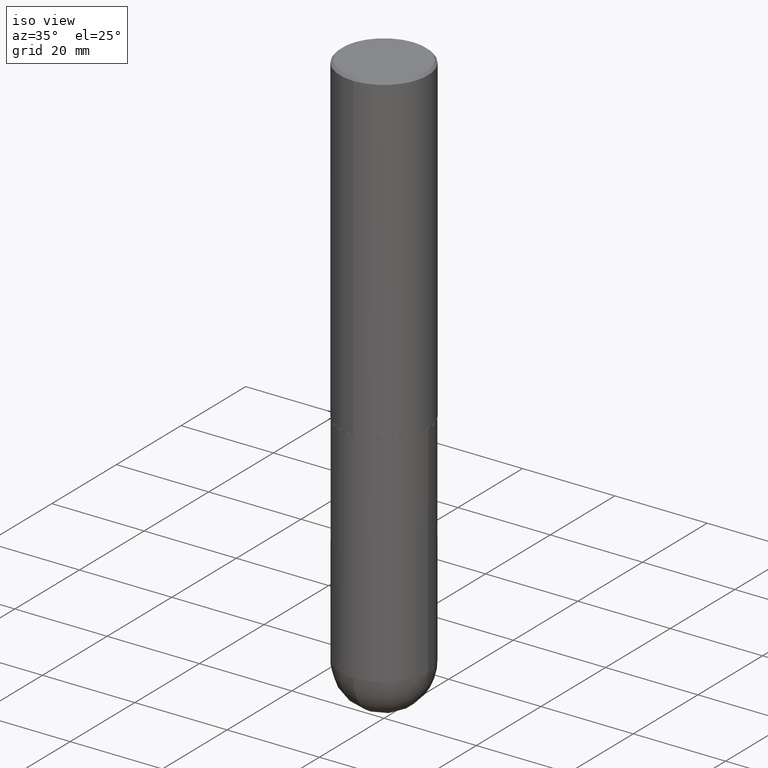
[diagram: clean part render]
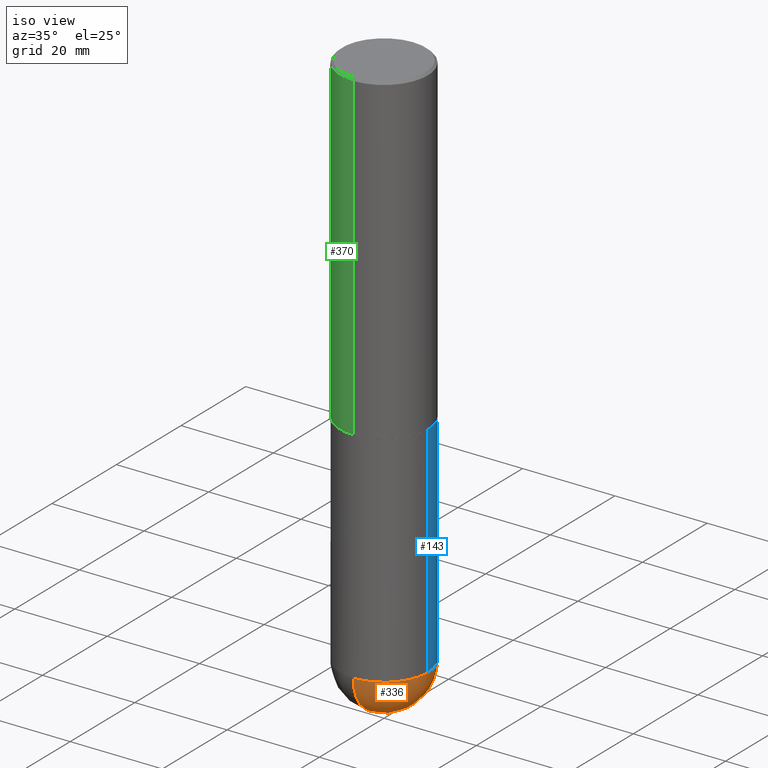
[diagram: same view with three faces highlighted in distinct colors, each labeled with its STEP entity id]
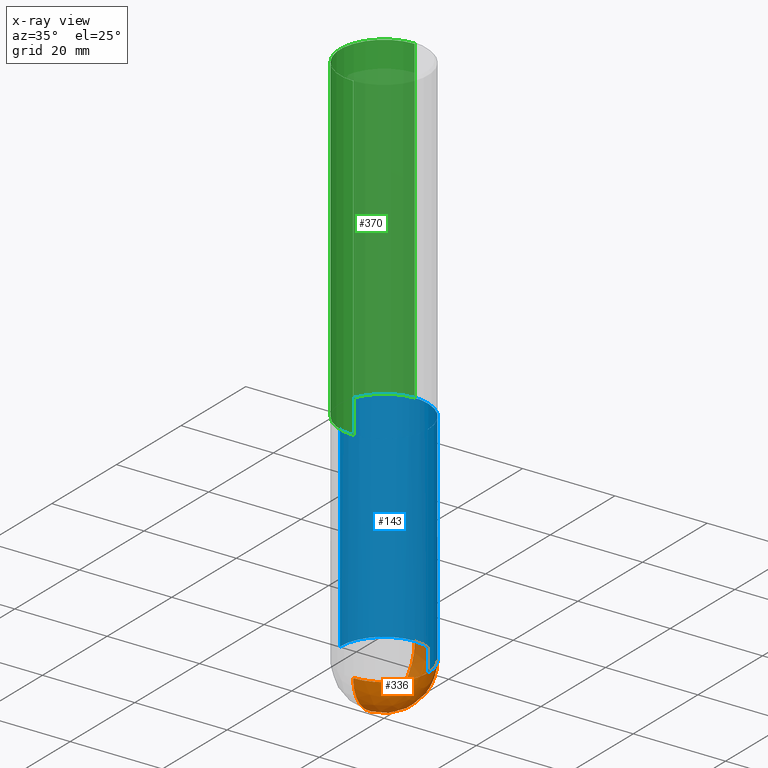
[diagram: x-ray of the same camera — body ghosted, the three highlighted faces saturated]
A machine part, iso view with three faces highlighted in distinct colors.
The next image is the same camera in x-ray (body ghosted, the three faces saturated) — at least one of them is partly hidden behind the body in this view.
Their STEP definitions:

[orange] entity #336 — the highlighted spherical surface has radius 9.525 mm.
#6 = CIRCLE ( 'NONE', #128, 0.3750000000000001110 ) ;
#12 = VERTEX_POINT ( 'NONE', #200 ) ;
#14 = CARTESIAN_POINT ( 'NONE',  ( 1.191225862093391378E-28, -1.790862693487176734E-14, -5.000000000000000000 ) ) ;
#45 = CARTESIAN_POINT ( 'NONE',  ( 1.097917345069237163E-28, -1.662228356028959886E-14, -4.625000000000000000 ) ) ;
#51 = CARTESIAN_POINT ( 'NONE',  ( 1.131029322860625676E-28, -1.614810119214955014E-14, -4.625000000000000888 ) ) ;
#56 = AXIS2_PLACEMENT_3D ( 'NONE', #258, #320, #377 ) ;
#60 = VERTEX_POINT ( 'NONE', #14 ) ;
#61 = CARTESIAN_POINT ( 'NONE',  ( -2.664535259100265651E-15, -0.3750000000000165978, -4.624999999999999112 ) ) ;
#66 = ORIENTED_EDGE ( 'NONE', *, *, #172, .F. ) ;
#67 = CARTESIAN_POINT ( 'NONE',  ( 1.131029322860625676E-28, -1.614810119214955014E-14, -4.625000000000000888 ) ) ;
#73 = CIRCLE ( 'NONE', #118, 0.3750000000000003886 ) ;
#74 = ORIENTED_EDGE ( 'NONE', *, *, #291, .F. ) ;
#82 = AXIS2_PLACEMENT_3D ( 'NONE', #51, #182, #183 ) ;
#92 = ORIENTED_EDGE ( 'NONE', *, *, #262, .T. ) ;
#98 = CARTESIAN_POINT ( 'NONE',  ( 1.097917345069237163E-28, -1.662228356028959886E-14, -4.625000000000000000 ) ) ;
#101 = DIRECTION ( 'NONE',  ( 1.000000000000000000, -6.982962677686265922E-15, 0.000000000000000000 ) ) ;
#118 = AXIS2_PLACEMENT_3D ( 'NONE', #45, #267, #177 ) ;
#123 = VERTEX_POINT ( 'NONE', #239 ) ;
#128 = AXIS2_PLACEMENT_3D ( 'NONE', #67, #323, #101 ) ;
#131 = SPHERICAL_SURFACE ( 'NONE', #56, 0.3750000000000003886 ) ;
#135 = FACE_OUTER_BOUND ( 'NONE', #188, .T. ) ;
#152 = ORIENTED_EDGE ( 'NONE', *, *, #255, .F. ) ;
#172 = EDGE_CURVE ( 'NONE', #60, #406, #73, .T. ) ;
#177 = DIRECTION ( 'NONE',  ( -7.105427357600999492E-15, -1.000000000000000000, 0.000000000000000000 ) ) ;
#182 = DIRECTION ( 'NONE',  ( -2.445468806185136597E-29, 3.491481338843145583E-15, 1.000000000000000000 ) ) ;
#183 = DIRECTION ( 'NONE',  ( 1.000000000000000000, -6.982962677686265922E-15, 0.000000000000000000 ) ) ;
#188 = EDGE_LOOP ( 'NONE', ( #66, #92, #74, #152 ) ) ;
#200 = CARTESIAN_POINT ( 'NONE',  ( 0.3750000000000001110, -1.549344844111645238E-14, -4.625000000000000888 ) ) ;
#239 = CARTESIAN_POINT ( 'NONE',  ( 2.618611004132463218E-15, 0.3749999999999838463, -4.625000000000001776 ) ) ;
#255 = EDGE_CURVE ( 'NONE', #406, #12, #325, .T. ) ;
#258 = CARTESIAN_POINT ( 'NONE',  ( 1.097917345069237163E-28, -1.662228356028959886E-14, -4.625000000000000000 ) ) ;
#262 = EDGE_CURVE ( 'NONE', #60, #123, #305, .T. ) ;
#267 = DIRECTION ( 'NONE',  ( -1.000000000000000000, 7.105427357601001070E-15, -4.926315508542082329E-29 ) ) ;
#286 = DIRECTION ( 'NONE',  ( 6.982962677686265922E-15, 1.000000000000000000, 0.000000000000000000 ) ) ;
#291 = EDGE_CURVE ( 'NONE', #12, #123, #6, .T. ) ;
#305 = CIRCLE ( 'NONE', #351, 0.3750000000000003886 ) ;
#320 = DIRECTION ( 'NONE',  ( -1.000000000000000000, 6.982962677686266711E-15, -4.883557194083113462E-29 ) ) ;
#323 = DIRECTION ( 'NONE',  ( -2.445468806185136597E-29, 3.491481338843145583E-15, 1.000000000000000000 ) ) ;
#325 = CIRCLE ( 'NONE', #82, 0.3750000000000001110 ) ;
#336 = ADVANCED_FACE ( 'NONE', ( #135 ), #131, .T. ) ;
#351 = AXIS2_PLACEMENT_3D ( 'NONE', #98, #409, #286 ) ;
#377 = DIRECTION ( 'NONE',  ( 6.982962677686266711E-15, 1.000000000000000000, -2.913971193241878005E-15 ) ) ;
#406 = VERTEX_POINT ( 'NONE', #61 ) ;
#409 = DIRECTION ( 'NONE',  ( 1.000000000000000000, -6.982962677686265922E-15, 4.883557194083112340E-29 ) ) ;

[blue] entity #143 — the highlighted cylindrical surface (partial cylindrical patch) has radius 9.525 mm, axis along (-0, 0, 1).
#2 = EDGE_CURVE ( 'NONE', #12, #28, #357, .T. ) ;
#6 = CIRCLE ( 'NONE', #128, 0.3750000000000001110 ) ;
#12 = VERTEX_POINT ( 'NONE', #200 ) ;
#24 = CARTESIAN_POINT ( 'NONE',  ( -0.3750000000000000555, -1.021030217788372352E-14, -2.750000000000000000 ) ) ;
#28 = VERTEX_POINT ( 'NONE', #230 ) ;
#30 = DIRECTION ( 'NONE',  ( 1.000000000000000000, -6.982962677686265922E-15, 4.876176775795935793E-29 ) ) ;
#31 = ORIENTED_EDGE ( 'NONE', *, *, #341, .T. ) ;
#67 = CARTESIAN_POINT ( 'NONE',  ( 1.131029322860625676E-28, -1.614810119214955014E-14, -4.625000000000000888 ) ) ;
#76 = CARTESIAN_POINT ( 'NONE',  ( 0.3750000000000001110, -2.618611004132350411E-15, 1.828566290923476483E-29 ) ) ;
#78 = CARTESIAN_POINT ( 'NONE',  ( -0.3750000000000001110, -1.021030217788372667E-14, -4.625000000000000888 ) ) ;
#95 = CARTESIAN_POINT ( 'NONE',  ( 1.131029322860625676E-28, -1.614810119214955014E-14, -4.625000000000000888 ) ) ;
#97 = DIRECTION ( 'NONE',  ( 1.000000000000000000, -6.982962677686265922E-15, 0.000000000000000000 ) ) ;
#99 = VERTEX_POINT ( 'NONE', #24 ) ;
#101 = DIRECTION ( 'NONE',  ( 1.000000000000000000, -6.982962677686265922E-15, 0.000000000000000000 ) ) ;
#109 = AXIS2_PLACEMENT_3D ( 'NONE', #190, #216, #30 ) ;
#121 = VECTOR ( 'NONE', #201, 39.37007874015748143 ) ;
#123 = VERTEX_POINT ( 'NONE', #239 ) ;
#128 = AXIS2_PLACEMENT_3D ( 'NONE', #67, #323, #101 ) ;
#143 = ADVANCED_FACE ( 'NONE', ( #364 ), #209, .T. ) ;
#163 = ORIENTED_EDGE ( 'NONE', *, *, #291, .T. ) ;
#167 = CIRCLE ( 'NONE', #397, 0.3750000000000000555 ) ;
#185 = VERTEX_POINT ( 'NONE', #78 ) ;
#190 = CARTESIAN_POINT ( 'NONE',  ( 0.000000000000000000, 0.000000000000000000, 0.000000000000000000 ) ) ;
#195 = EDGE_LOOP ( 'NONE', ( #297, #31, #223, #372, #163 ) ) ;
#198 = DIRECTION ( 'NONE',  ( 1.000000000000000000, -6.982962677686266711E-15, 0.000000000000000000 ) ) ;
#200 = CARTESIAN_POINT ( 'NONE',  ( 0.3750000000000001110, -1.549344844111645238E-14, -4.625000000000000888 ) ) ;
#201 = DIRECTION ( 'NONE',  ( -2.445468806185136877E-29, 3.491481338843145188E-15, 1.000000000000000000 ) ) ;
#207 = DIRECTION ( 'NONE',  ( -2.445468806185136877E-29, 3.491481338843145188E-15, 1.000000000000000000 ) ) ;
#209 = CYLINDRICAL_SURFACE ( 'NONE', #109, 0.3750000000000001110 ) ;
#216 = DIRECTION ( 'NONE',  ( -2.445468806185136597E-29, 3.491481338843145583E-15, 1.000000000000000000 ) ) ;
#220 = DIRECTION ( 'NONE',  ( -2.445468806185136597E-29, 3.491481338843145583E-15, 1.000000000000000000 ) ) ;
#223 = ORIENTED_EDGE ( 'NONE', *, *, #367, .F. ) ;
#228 = CIRCLE ( 'NONE', #402, 0.3750000000000001110 ) ;
#230 = CARTESIAN_POINT ( 'NONE',  ( 0.3750000000000000555, -1.222018468595100145E-14, -2.750000000000000000 ) ) ;
#239 = CARTESIAN_POINT ( 'NONE',  ( 2.618611004132463218E-15, 0.3749999999999838463, -4.625000000000001776 ) ) ;
#252 = DIRECTION ( 'NONE',  ( -2.445468806185136597E-29, 3.491481338843145583E-15, 1.000000000000000000 ) ) ;
#256 = CARTESIAN_POINT ( 'NONE',  ( -0.3750000000000001110, 2.664535259100376486E-15, -1.844600658845590159E-29 ) ) ;
#291 = EDGE_CURVE ( 'NONE', #12, #123, #6, .T. ) ;
#297 = ORIENTED_EDGE ( 'NONE', *, *, #400, .T. ) ;
#313 = CARTESIAN_POINT ( 'NONE',  ( 6.725039217009124520E-29, -9.601573681818649859E-15, -2.750000000000000000 ) ) ;
#323 = DIRECTION ( 'NONE',  ( -2.445468806185136597E-29, 3.491481338843145583E-15, 1.000000000000000000 ) ) ;
#341 = EDGE_CURVE ( 'NONE', #185, #99, #383, .T. ) ;
#357 = LINE ( 'NONE', #76, #375 ) ;
#364 = FACE_OUTER_BOUND ( 'NONE', #195, .T. ) ;
#367 = EDGE_CURVE ( 'NONE', #28, #99, #167, .T. ) ;
#372 = ORIENTED_EDGE ( 'NONE', *, *, #2, .F. ) ;
#375 = VECTOR ( 'NONE', #207, 39.37007874015748143 ) ;
#383 = LINE ( 'NONE', #256, #121 ) ;
#397 = AXIS2_PLACEMENT_3D ( 'NONE', #313, #252, #198 ) ;
#400 = EDGE_CURVE ( 'NONE', #123, #185, #228, .T. ) ;
#402 = AXIS2_PLACEMENT_3D ( 'NONE', #95, #220, #97 ) ;

[green] entity #370 — the highlighted cylindrical surface (partial cylindrical patch) has radius 9.525 mm, axis along (-0, 0, 1).
#4 = VECTOR ( 'NONE', #173, 39.37007874015748143 ) ;
#34 = EDGE_CURVE ( 'NONE', #388, #328, #226, .T. ) ;
#50 = VECTOR ( 'NONE', #278, 39.37007874015748143 ) ;
#55 = EDGE_CURVE ( 'NONE', #328, #191, #265, .T. ) ;
#70 = ORIENTED_EDGE ( 'NONE', *, *, #55, .T. ) ;
#104 = DIRECTION ( 'NONE',  ( -2.445545483075457236E-29, 3.491371533172028921E-15, 1.000000000000000000 ) ) ;
#105 = EDGE_CURVE ( 'NONE', #312, #191, #381, .T. ) ;
#127 = CARTESIAN_POINT ( 'NONE',  ( 0.000000000000000000, 0.000000000000000000, 0.000000000000000000 ) ) ;
#137 = CARTESIAN_POINT ( 'NONE',  ( 6.722804532974430980E-29, -9.597780344689909299E-15, -2.749000000000000110 ) ) ;
#150 = CARTESIAN_POINT ( 'NONE',  ( -2.572686749164324336E-15, -0.3750000000000001665, -0.01999999999999877570 ) ) ;
#155 = LINE ( 'NONE', #302, #50 ) ;
#157 = FACE_OUTER_BOUND ( 'NONE', #353, .T. ) ;
#168 = DIRECTION ( 'NONE',  ( -6.982962677686265922E-15, -1.000000000000000000, 2.913971193241877611E-15 ) ) ;
#173 = DIRECTION ( 'NONE',  ( -2.445545483075457236E-29, 3.491371533172028526E-15, 1.000000000000000000 ) ) ;
#191 = VERTEX_POINT ( 'NONE', #150 ) ;
#194 = CYLINDRICAL_SURFACE ( 'NONE', #270, 0.3750000000000002220 ) ;
#211 = EDGE_CURVE ( 'NONE', #388, #312, #155, .T. ) ;
#224 = CARTESIAN_POINT ( 'NONE',  ( 2.618611004132351200E-15, 0.3750000000000000555, -0.02000000000000139513 ) ) ;
#226 = CIRCLE ( 'NONE', #396, 0.3750000000000003886 ) ;
#235 = AXIS2_PLACEMENT_3D ( 'NONE', #272, #405, #276 ) ;
#249 = DIRECTION ( 'NONE',  ( -6.982962677686266711E-15, -1.000000000000000000, 3.491371533172028921E-15 ) ) ;
#260 = DIRECTION ( 'NONE',  ( -2.445545483075457236E-29, 3.491371533172028921E-15, 1.000000000000000000 ) ) ;
#265 = LINE ( 'NONE', #382, #4 ) ;
#270 = AXIS2_PLACEMENT_3D ( 'NONE', #127, #104, #249 ) ;
#272 = CARTESIAN_POINT ( 'NONE',  ( 4.891090966150935106E-31, -6.982743066344087079E-17, -0.02000000000000008715 ) ) ;
#276 = DIRECTION ( 'NONE',  ( -6.982962677686265922E-15, -1.000000000000000000, 3.494488891895535640E-15 ) ) ;
#278 = DIRECTION ( 'NONE',  ( -2.445545483075457236E-29, 3.491371533172028526E-15, 1.000000000000000000 ) ) ;
#282 = ORIENTED_EDGE ( 'NONE', *, *, #34, .T. ) ;
#292 = CARTESIAN_POINT ( 'NONE',  ( -2.618611004132284935E-15, -0.3750000000000099920, -2.748999999999999222 ) ) ;
#302 = CARTESIAN_POINT ( 'NONE',  ( 2.664535259100376880E-15, 0.3750000000000002220, -1.309264324939511634E-15 ) ) ;
#312 = VERTEX_POINT ( 'NONE', #224 ) ;
#319 = ORIENTED_EDGE ( 'NONE', *, *, #105, .F. ) ;
#328 = VERTEX_POINT ( 'NONE', #292 ) ;
#353 = EDGE_LOOP ( 'NONE', ( #359, #282, #70, #319 ) ) ;
#359 = ORIENTED_EDGE ( 'NONE', *, *, #211, .F. ) ;
#370 = ADVANCED_FACE ( 'NONE', ( #157 ), #194, .T. ) ;
#374 = CARTESIAN_POINT ( 'NONE',  ( 2.664535259100411196E-15, 0.3749999999999907296, -2.749000000000000998 ) ) ;
#381 = CIRCLE ( 'NONE', #235, 0.3750000000000001110 ) ;
#382 = CARTESIAN_POINT ( 'NONE',  ( -2.618611004132351594E-15, -0.3750000000000002220, 1.309264324939511634E-15 ) ) ;
#388 = VERTEX_POINT ( 'NONE', #374 ) ;
#396 = AXIS2_PLACEMENT_3D ( 'NONE', #137, #260, #168 ) ;
#405 = DIRECTION ( 'NONE',  ( -2.445545483075457236E-29, 3.491371533172028921E-15, 1.000000000000000000 ) ) ;